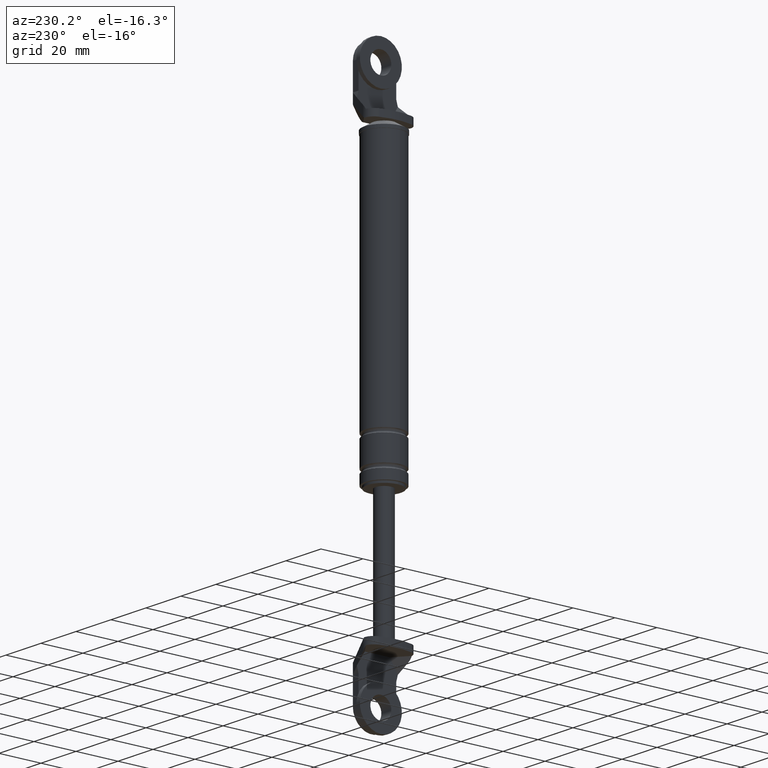
[diagram: clean part render]
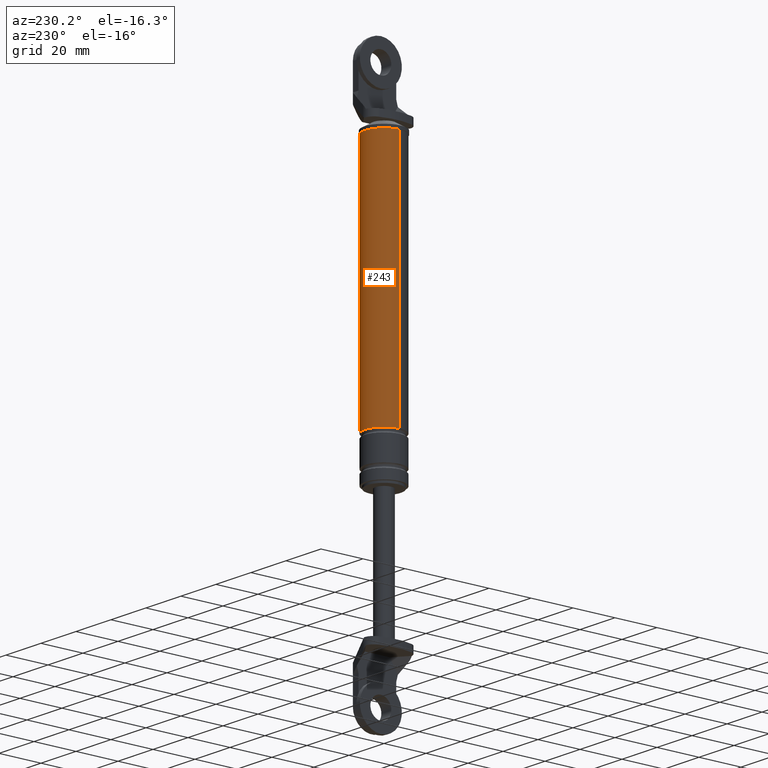
[diagram: same view with one face highlighted and labeled with its STEP entity id]
A machine part, auxiliary view. The second image highlights one B-rep face of the part: STEP entity #243.
In plain terms, the highlighted cylindrical surface (edge-blend (fillet) strip) has radius 9 mm, axis along (0, 0, 1).
Its self-contained STEP definition (entity closure, byte-faithful):
#243=ADVANCED_FACE('',(#685),#684,.T.);
#684=CYLINDRICAL_SURFACE('',#1402,9.00000000000E+000);
#685=FACE_OUTER_BOUND('',#1403,.T.);
#1399=CARTESIAN_POINT('',(0.00000000000E+000,3.58204186421E-014,0.00000000000E+000));
#1400=DIRECTION('',(-0.00000000000E+000,-0.00000000000E+000,1.00000000000E+000));
#1401=DIRECTION('',(1.00000000000E+000,-0.00000000000E+000,-0.00000000000E+000));
#1402=AXIS2_PLACEMENT_3D('',#1399,#1400,#1401);
#1403=EDGE_LOOP('',(#1950,#1951,#1952,#1953));
#1950=ORIENTED_EDGE('',*,*,#2216,.T.);
#1951=ORIENTED_EDGE('',*,*,#2261,.F.);
#1952=ORIENTED_EDGE('',*,*,#2262,.F.);
#1953=ORIENTED_EDGE('',*,*,#2263,.T.);
#2216=EDGE_CURVE('',#2744,#2743,#2751,.T.);
#2261=EDGE_CURVE('',#3046,#2743,#3047,.T.);
#2262=EDGE_CURVE('',#3053,#3046,#3054,.T.);
#2263=EDGE_CURVE('',#3053,#2744,#3060,.T.);
#2743=VERTEX_POINT('',#3920);
#2744=VERTEX_POINT('',#3921);
#2751=CIRCLE('',#3929,9.00000000000E+000);
#3046=VERTEX_POINT('',#4103);
#3047=(BOUNDED_CURVE() B_SPLINE_CURVE(1,(#4104,#4105),.UNSPECIFIED.,.F.,.F.) B_SPLINE_CURVE_WITH_KNOTS((2,2),(7.46268656100E-002,9.25373134135E-001),.UNSPECIFIED.) CURVE() GEOMETRIC_REPRESENTATION_ITEM() RATIONAL_B_SPLINE_CURVE((1.00000000000E+000,1.00000000000E+000)) REPRESENTATION_ITEM('') );
#3053=VERTEX_POINT('',#4106);
#3054=CIRCLE('',#4110,9.00000000000E+000);
#3060=(BOUNDED_CURVE() B_SPLINE_CURVE(1,(#4111,#4112),.UNSPECIFIED.,.F.,.F.) B_SPLINE_CURVE_WITH_KNOTS((2,2),(7.46268656716E-002,9.25373134328E-001),.UNSPECIFIED.) CURVE() GEOMETRIC_REPRESENTATION_ITEM() RATIONAL_B_SPLINE_CURVE((7.50000000000E-001,7.50000000000E-001)) REPRESENTATION_ITEM('') );
#3920=CARTESIAN_POINT('',(9.00000000000E+000,3.61192557345E-014,8.49999850000E+001));
#3921=CARTESIAN_POINT('',(-9.00000000000E+000,3.58204186421E-014,8.49999850000E+001));
#3926=CARTESIAN_POINT('',(0.00000000000E+000,3.58204186421E-014,8.49999850000E+001));
#3927=DIRECTION('',(-0.00000000000E+000,0.00000000000E+000,-1.00000000000E+000));
#3928=DIRECTION('',(-1.00000000000E+000,-1.22460635382E-016,0.00000000000E+000));
#3929=AXIS2_PLACEMENT_3D('',#3926,#3927,#3928);
#4103=CARTESIAN_POINT('',(9.00000000000E+000,3.61192557345E-014,-2.90000150000E+001));
#4104=CARTESIAN_POINT('',(9.00000000000E+000,3.58204186421E-014,-2.90000150083E+001));
#4105=CARTESIAN_POINT('',(9.00000000000E+000,3.58204186421E-014,8.49999849741E+001));
#4106=CARTESIAN_POINT('',(-9.00000000000E+000,3.58204186421E-014,-2.90000150000E+001));
#4107=CARTESIAN_POINT('',(0.00000000000E+000,3.58204186421E-014,-2.90000150000E+001));
#4108=DIRECTION('',(-0.00000000000E+000,0.00000000000E+000,-1.00000000000E+000));
#4109=DIRECTION('',(-1.00000000000E+000,-1.22460635382E-016,0.00000000000E+000));
#4110=AXIS2_PLACEMENT_3D('',#4107,#4108,#4109);
#4111=CARTESIAN_POINT('',(-9.00000000000E+000,3.52310773148E-014,-2.90000150000E+001));
#4112=CARTESIAN_POINT('',(-9.00000000000E+000,3.52310773148E-014,8.49999850000E+001));